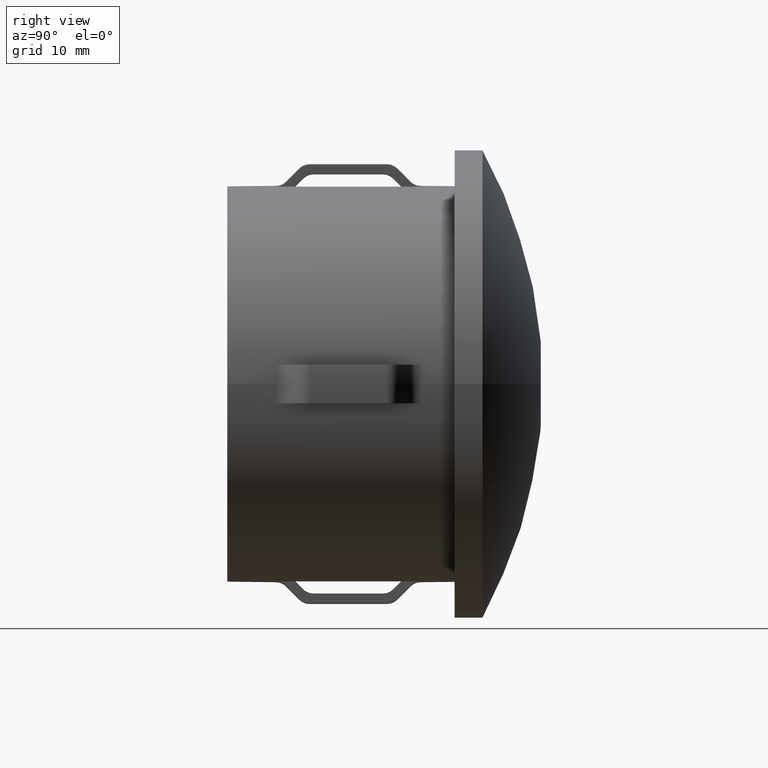
[diagram: clean part render]
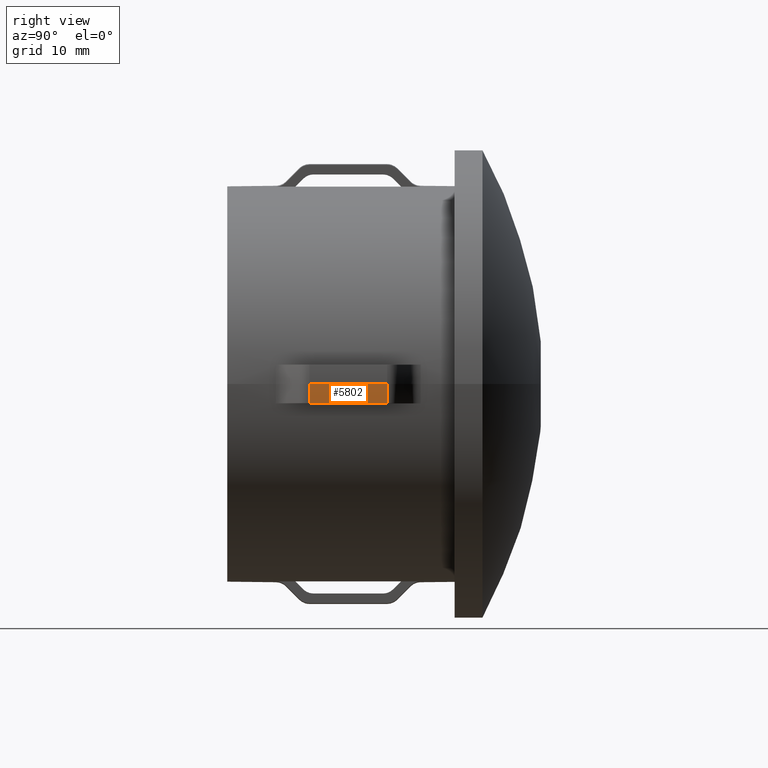
[diagram: same view with one face highlighted and labeled with its STEP entity id]
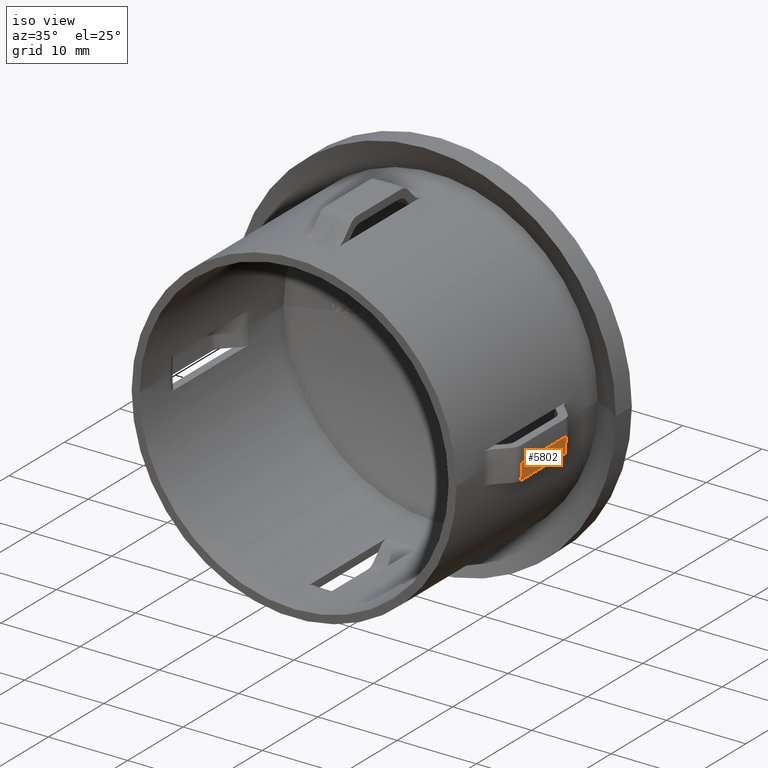
[diagram: same view with one face highlighted and labeled with its STEP entity id]
A machine part, right view. The second image highlights one B-rep face of the part: STEP entity #5802.
A second angle (iso view) of the same face is appended — the face is thin or edge-on in the first view.
In plain terms, the highlighted cylindrical surface (partial cylindrical patch) has radius 22.75 mm, axis along (-0, -1, -0).
Its self-contained STEP definition (entity closure, byte-faithful):
#220 = CIRCLE ( 'NONE', #7076, 22.75000000000006000 ) ;
#391 = ORIENTED_EDGE ( 'NONE', *, *, #13508, .F. ) ;
#614 = CARTESIAN_POINT ( 'NONE',  ( 0.0000000000000000000, 30.10000000000000100, 0.0000000000000000000 ) ) ;
#782 = FACE_OUTER_BOUND ( 'NONE', #7113, .T. ) ;
#1623 = CARTESIAN_POINT ( 'NONE',  ( 22.66191739460735700, 8.507359312880781800, -2.000000000000006700 ) ) ;
#2239 = LINE ( 'NONE', #7454, #4106 ) ;
#2387 = LINE ( 'NONE', #3024, #13157 ) ;
#2724 = DIRECTION ( 'NONE',  ( -2.904862207577519400E-015, -1.000000000000000000, -0.0000000000000000000 ) ) ;
#3024 = CARTESIAN_POINT ( 'NONE',  ( 22.75000000000005000, 30.09999999999993700, 0.0000000000000000000 ) ) ;
#3222 = ORIENTED_EDGE ( 'NONE', *, *, #7271, .T. ) ;
#4106 = VECTOR ( 'NONE', #11448, 1000.000000000000000 ) ;
#4124 = DIRECTION ( 'NONE',  ( 1.000000000000000000, -2.897560091741474800E-015, 0.0000000000000000000 ) ) ;
#5655 = DIRECTION ( 'NONE',  ( -2.904862207577519400E-015, -1.000000000000000000, -0.0000000000000000000 ) ) ;
#5802 = ADVANCED_FACE ( 'NONE', ( #782 ), #14218, .T. ) ;
#5862 = DIRECTION ( 'NONE',  ( 1.000000000000000000, -2.897560091741472400E-015, 0.0000000000000000000 ) ) ;
#6016 = DIRECTION ( 'NONE',  ( -2.904862207577519400E-015, -1.000000000000000000, -0.0000000000000000000 ) ) ;
#7076 = AXIS2_PLACEMENT_3D ( 'NONE', #12454, #9752, #5862 ) ;
#7113 = EDGE_LOOP ( 'NONE', ( #10402, #3222, #391, #16539 ) ) ;
#7271 = EDGE_CURVE ( 'NONE', #11632, #7345, #2387, .T. ) ;
#7335 = DIRECTION ( 'NONE',  ( 1.000000000000000000, -2.897560091741473600E-015, 0.0000000000000000000 ) ) ;
#7345 = VERTEX_POINT ( 'NONE', #11342 ) ;
#7454 = CARTESIAN_POINT ( 'NONE',  ( 22.66191739460735700, 20.00000000000000000, -2.000000000000006700 ) ) ;
#8104 = CARTESIAN_POINT ( 'NONE',  ( -3.948474823319314900E-014, 16.50735931288078400, 0.0000000000000000000 ) ) ;
#9091 = AXIS2_PLACEMENT_3D ( 'NONE', #8104, #2724, #4124 ) ;
#9752 = DIRECTION ( 'NONE',  ( -2.904862207577519400E-015, -1.000000000000000000, -0.0000000000000000000 ) ) ;
#10402 = ORIENTED_EDGE ( 'NONE', *, *, #14730, .T. ) ;
#11005 = AXIS2_PLACEMENT_3D ( 'NONE', #614, #6016, #7335 ) ;
#11342 = CARTESIAN_POINT ( 'NONE',  ( 22.74999999999999600, 8.507359312880719700, 0.0000000000000000000 ) ) ;
#11448 = DIRECTION ( 'NONE',  ( -2.449293598294745400E-017, -1.000000000000000000, -0.0000000000000000000 ) ) ;
#11632 = VERTEX_POINT ( 'NONE', #14722 ) ;
#12363 = VERTEX_POINT ( 'NONE', #1623 ) ;
#12454 = CARTESIAN_POINT ( 'NONE',  ( -6.272364589381328600E-014, 8.507359312880787200, 0.0000000000000000000 ) ) ;
#12691 = CARTESIAN_POINT ( 'NONE',  ( 22.66191739460735700, 16.50735931288072000, -2.000000000000006700 ) ) ;
#13157 = VECTOR ( 'NONE', #5655, 1000.000000000000000 ) ;
#13508 = EDGE_CURVE ( 'NONE', #12363, #7345, #220, .T. ) ;
#14218 = CYLINDRICAL_SURFACE ( 'NONE', #11005, 22.75000000000005000 ) ;
#14286 = EDGE_CURVE ( 'NONE', #16811, #12363, #2239, .T. ) ;
#14659 = CIRCLE ( 'NONE', #9091, 22.75000000000003900 ) ;
#14722 = CARTESIAN_POINT ( 'NONE',  ( 22.75000000000000000, 16.50735931288071600, 0.0000000000000000000 ) ) ;
#14730 = EDGE_CURVE ( 'NONE', #16811, #11632, #14659, .T. ) ;
#16539 = ORIENTED_EDGE ( 'NONE', *, *, #14286, .F. ) ;
#16811 = VERTEX_POINT ( 'NONE', #12691 ) ;